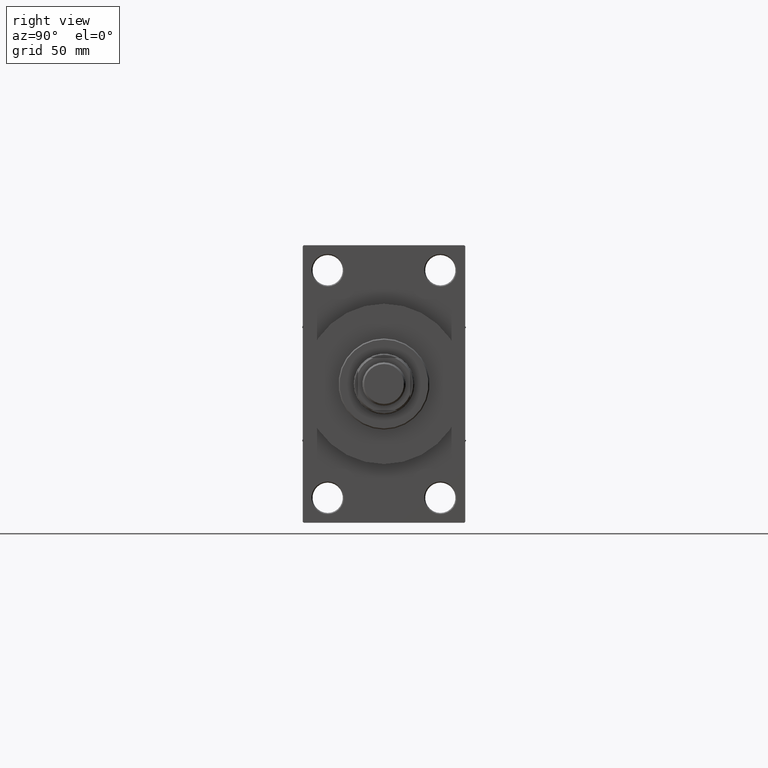
[diagram: clean part render]
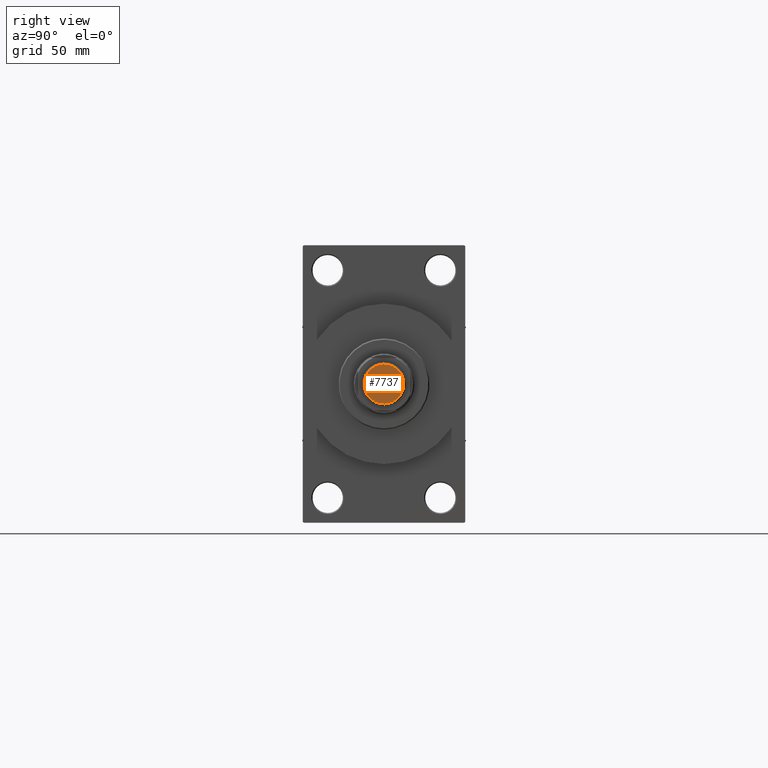
[diagram: same view with one face highlighted and labeled with its STEP entity id]
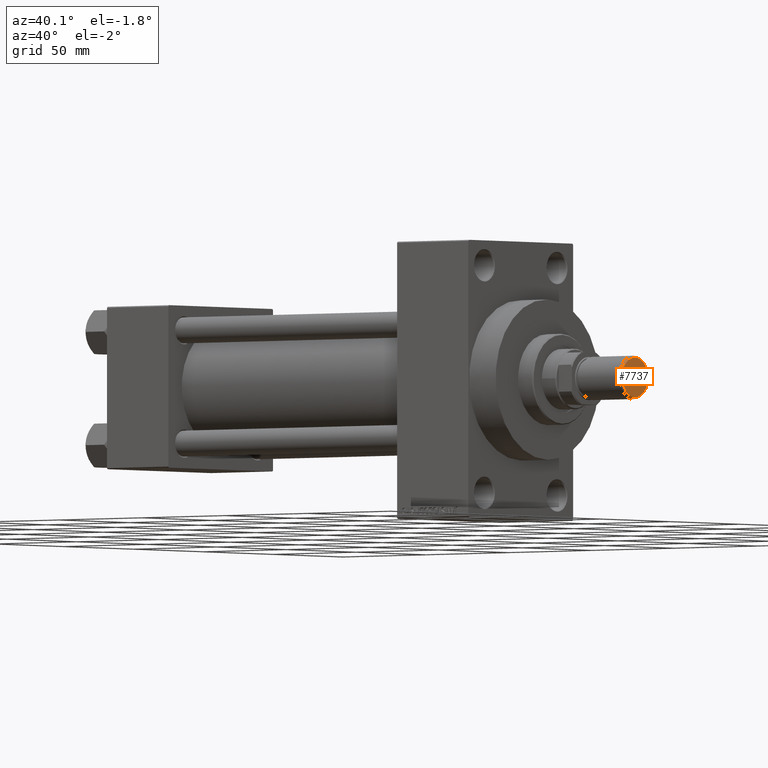
[diagram: same view with one face highlighted and labeled with its STEP entity id]
A machine part, right view. The second image highlights one B-rep face of the part: STEP entity #7737.
A second angle (auxiliary view) of the same face is appended — the face is thin or edge-on in the first view.
In plain terms, the highlighted planar face has unit normal (-1, 0, 0).
Its self-contained STEP definition (entity closure, byte-faithful):
#316 = VERTEX_POINT ( 'NONE', #2642 ) ;
#1194 = DIRECTION ( 'NONE',  ( 1.000000000000000000, 0.000000000000000000, 0.000000000000000000 ) ) ;
#1882 = DIRECTION ( 'NONE',  ( 1.000000000000000000, 0.000000000000000000, 0.000000000000000000 ) ) ;
#2586 = DIRECTION ( 'NONE',  ( -0.000000000000000000, -0.000000000000000000, -1.000000000000000000 ) ) ;
#2642 = CARTESIAN_POINT ( 'NONE',  ( 9.199999999999992184, 0.000000000000000000, 0.000000000000000000 ) ) ;
#3069 = CARTESIAN_POINT ( 'NONE',  ( -9.199999999999992184, 1.175660927181458645E-15, 0.000000000000000000 ) ) ;
#4338 = CARTESIAN_POINT ( 'NONE',  ( 0.000000000000000000, 0.000000000000000000, 0.000000000000000000 ) ) ;
#7737 = ADVANCED_FACE ( 'NONE', ( #27573 ), #21063, .F. ) ;
#10651 = AXIS2_PLACEMENT_3D ( 'NONE', #27663, #2586, #1882 ) ;
#12779 = ORIENTED_EDGE ( 'NONE', *, *, #33801, .T. ) ;
#13841 = CARTESIAN_POINT ( 'NONE',  ( 0.000000000000000000, 0.000000000000000000, 0.000000000000000000 ) ) ;
#21063 = PLANE ( 'NONE',  #29506 ) ;
#24196 = DIRECTION ( 'NONE',  ( 0.000000000000000000, 0.000000000000000000, 1.000000000000000000 ) ) ;
#27573 = FACE_OUTER_BOUND ( 'NONE', #36598, .T. ) ;
#27663 = CARTESIAN_POINT ( 'NONE',  ( 0.000000000000000000, 0.000000000000000000, 0.000000000000000000 ) ) ;
#27812 = EDGE_CURVE ( 'NONE', #316, #46233, #32172, .T. ) ;
#28522 = DIRECTION ( 'NONE',  ( 1.000000000000000000, 0.000000000000000000, -0.000000000000000000 ) ) ;
#28528 = CIRCLE ( 'NONE', #29328, 9.199999999999992184 ) ;
#29328 = AXIS2_PLACEMENT_3D ( 'NONE', #4338, #44610, #1194 ) ;
#29506 = AXIS2_PLACEMENT_3D ( 'NONE', #13841, #24196, #28522 ) ;
#32172 = CIRCLE ( 'NONE', #10651, 9.199999999999992184 ) ;
#33801 = EDGE_CURVE ( 'NONE', #46233, #316, #28528, .T. ) ;
#36598 = EDGE_LOOP ( 'NONE', ( #38220, #12779 ) ) ;
#38220 = ORIENTED_EDGE ( 'NONE', *, *, #27812, .T. ) ;
#44610 = DIRECTION ( 'NONE',  ( -0.000000000000000000, -0.000000000000000000, -1.000000000000000000 ) ) ;
#46233 = VERTEX_POINT ( 'NONE', #3069 ) ;